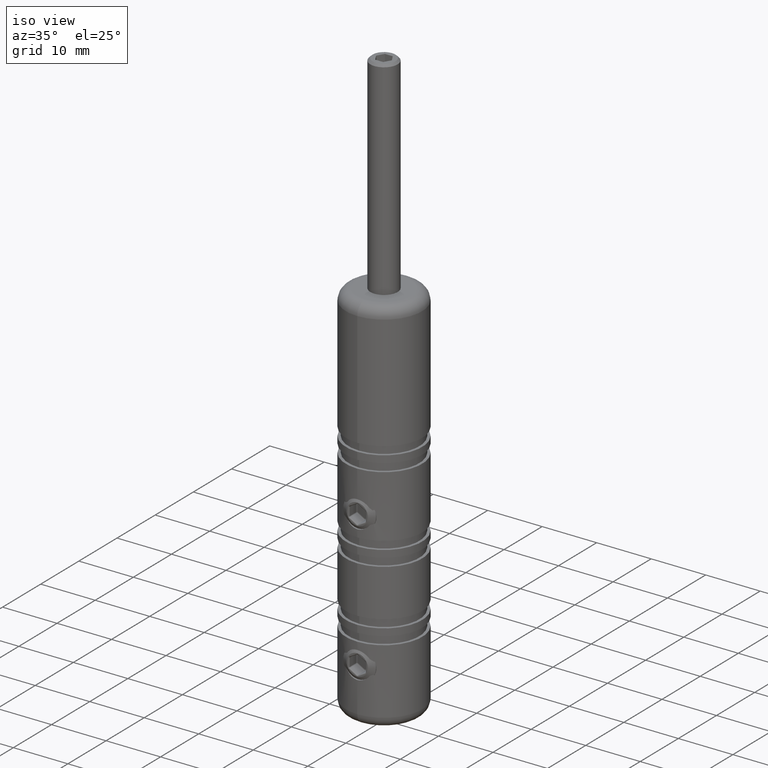
[diagram: clean part render]
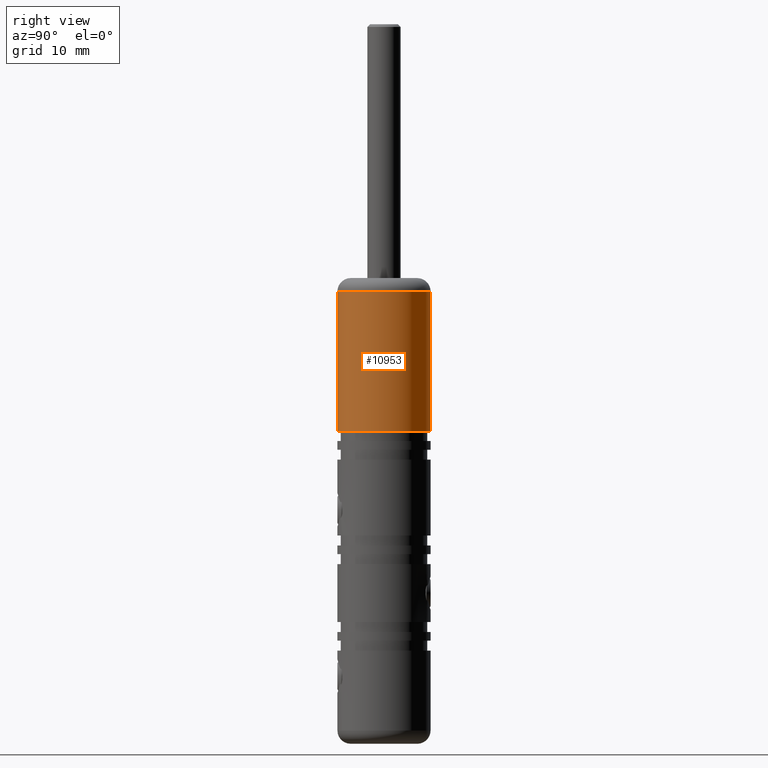
[diagram: tour spotlight — one face highlighted and labeled with its STEP entity id]
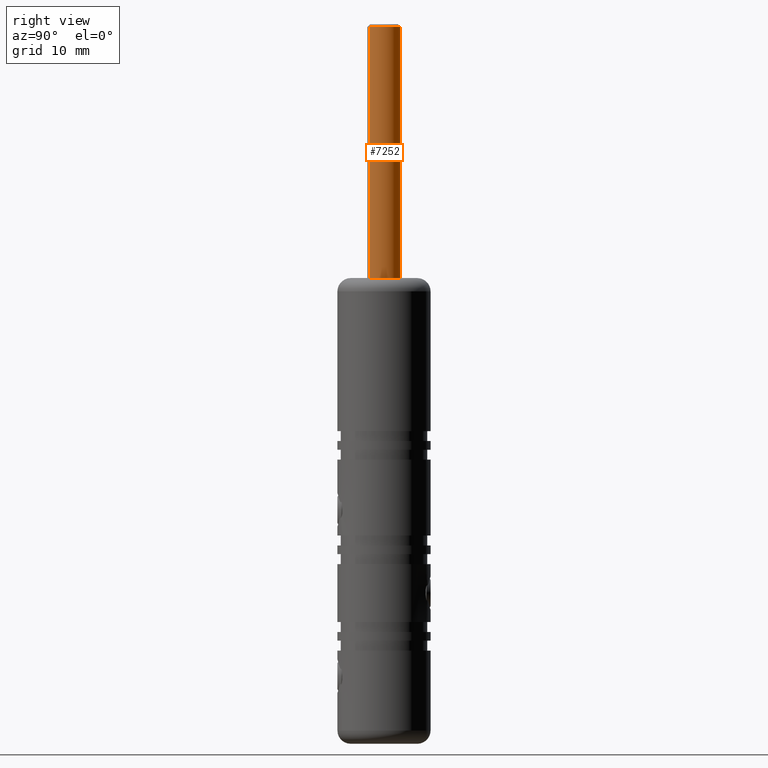
[diagram: tour spotlight — one face highlighted and labeled with its STEP entity id]
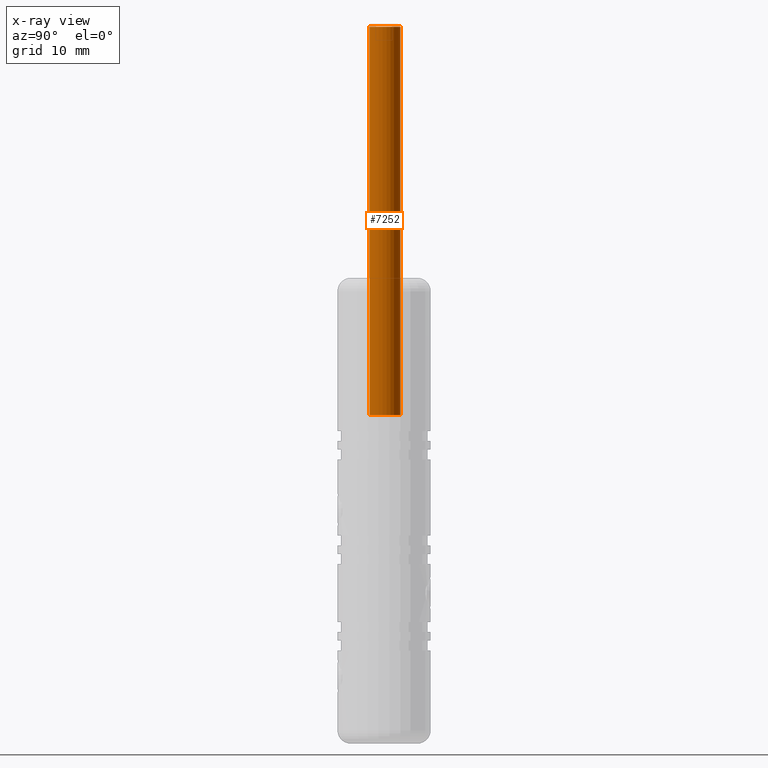
[diagram: x-ray of the same camera — body ghosted, this tour face saturated]
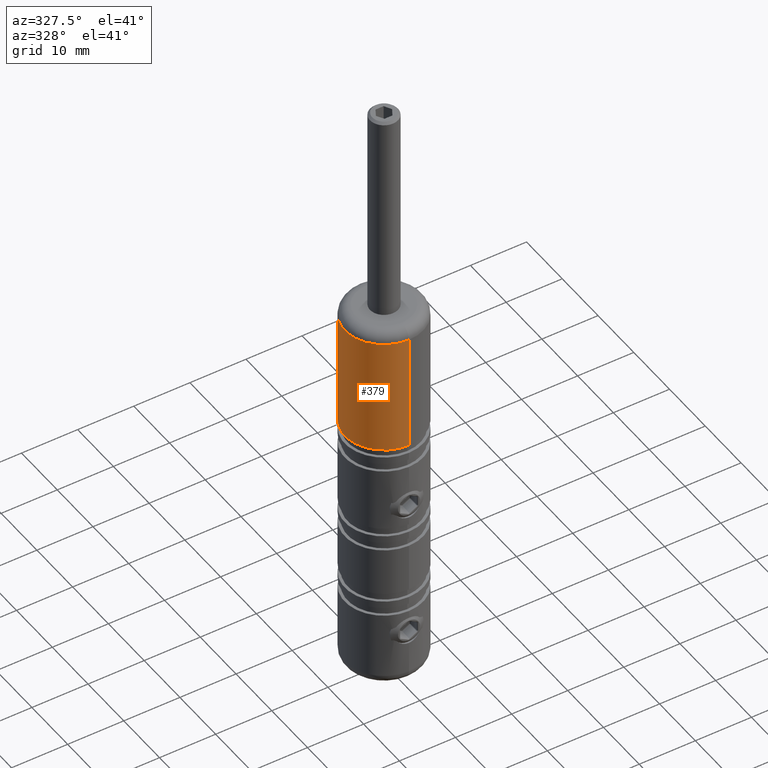
[diagram: tour spotlight — one face highlighted and labeled with its STEP entity id]
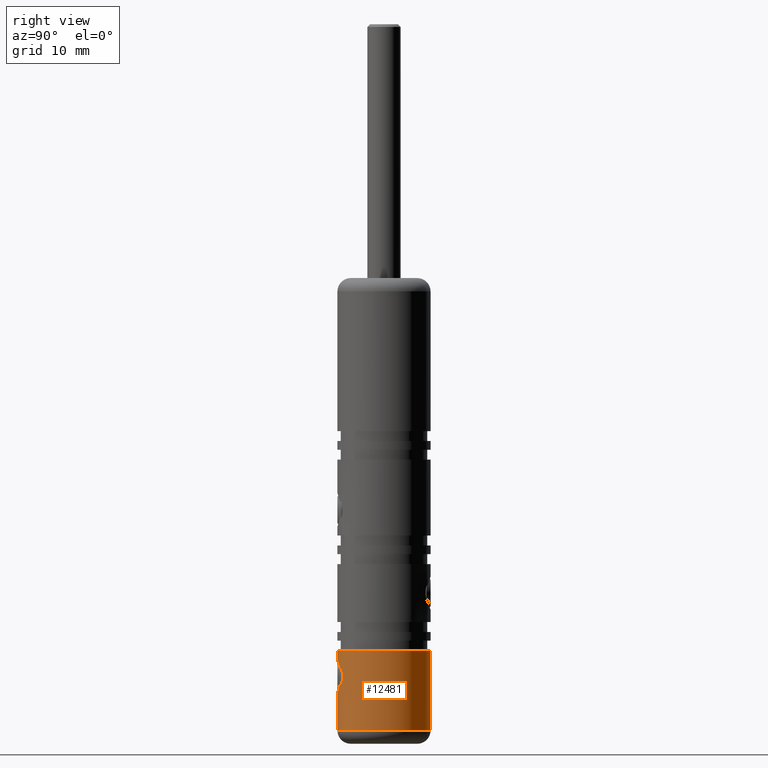
[diagram: tour spotlight — one face highlighted and labeled with its STEP entity id]
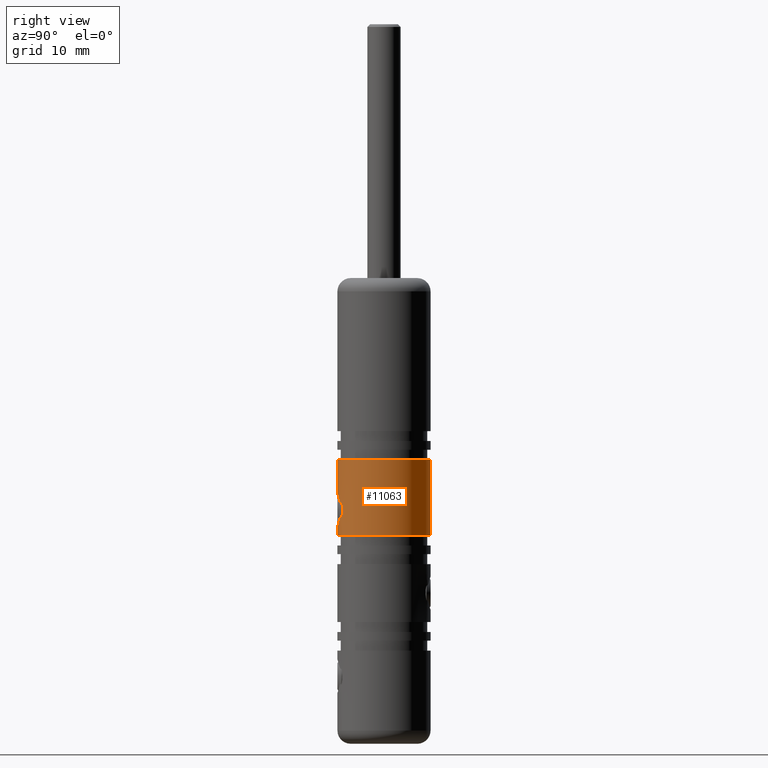
[diagram: tour spotlight — one face highlighted and labeled with its STEP entity id]
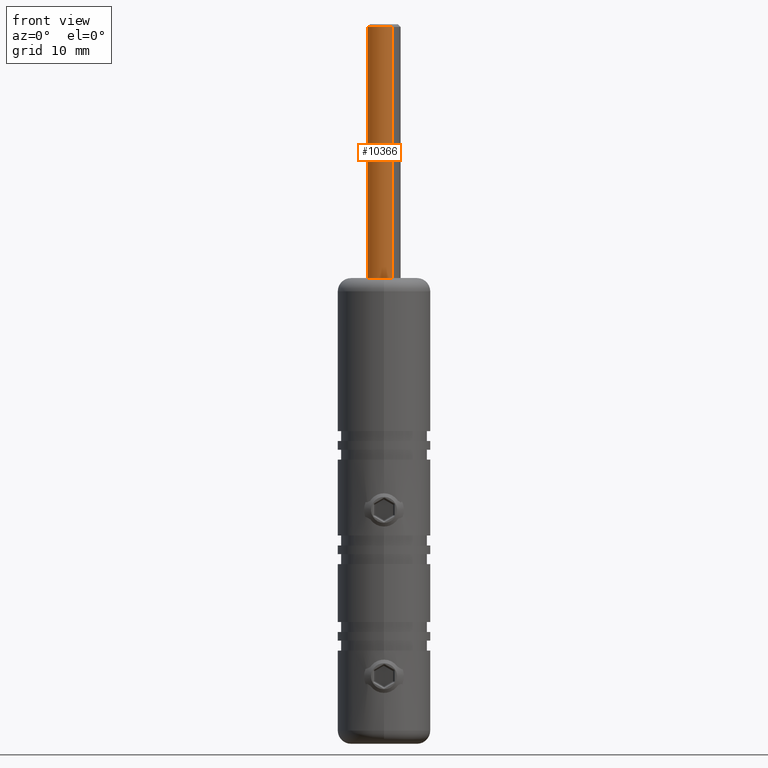
[diagram: tour spotlight — one face highlighted and labeled with its STEP entity id]
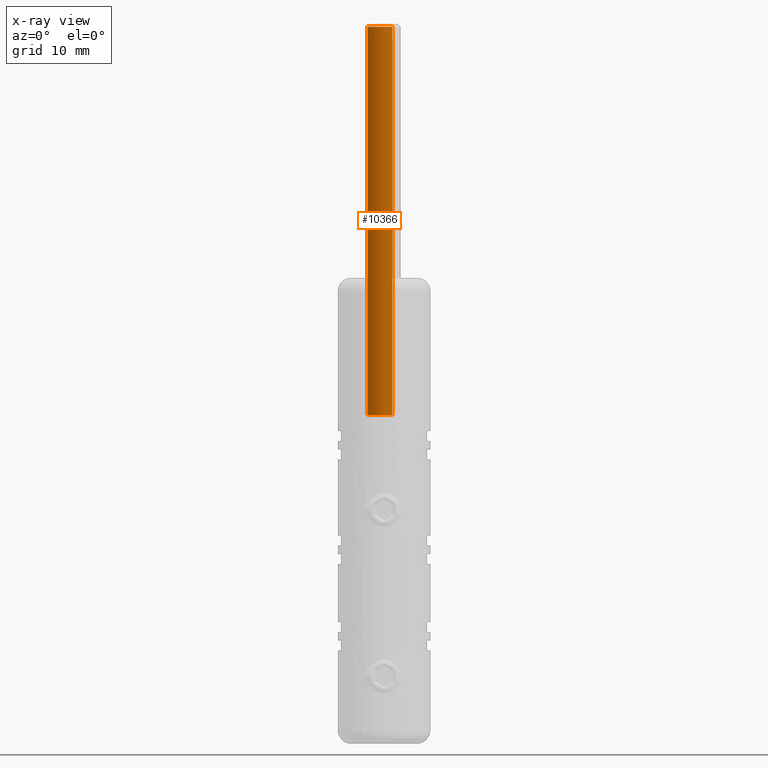
[diagram: x-ray of the same camera — body ghosted, this tour face saturated]
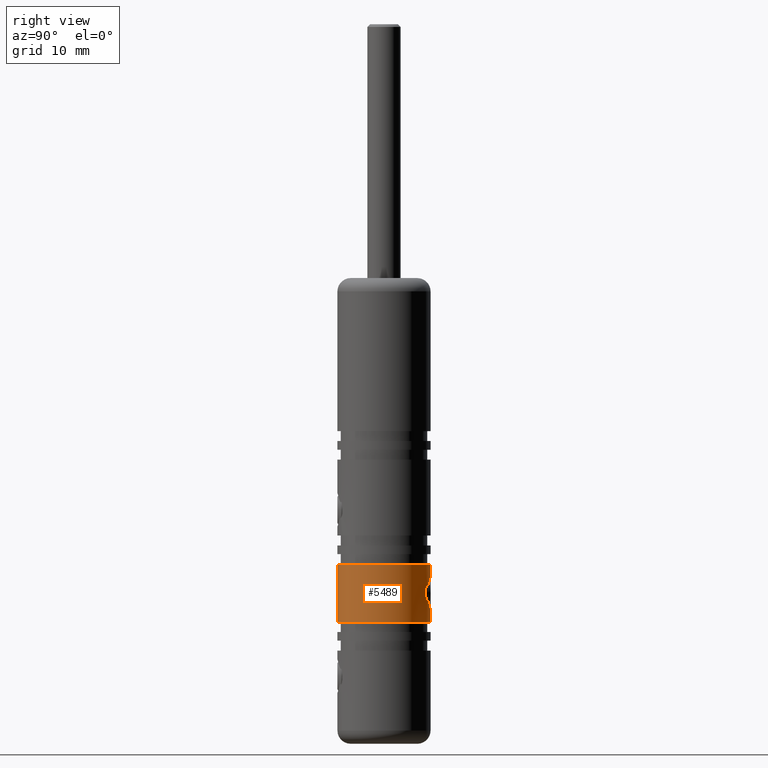
[diagram: tour spotlight — one face highlighted and labeled with its STEP entity id]
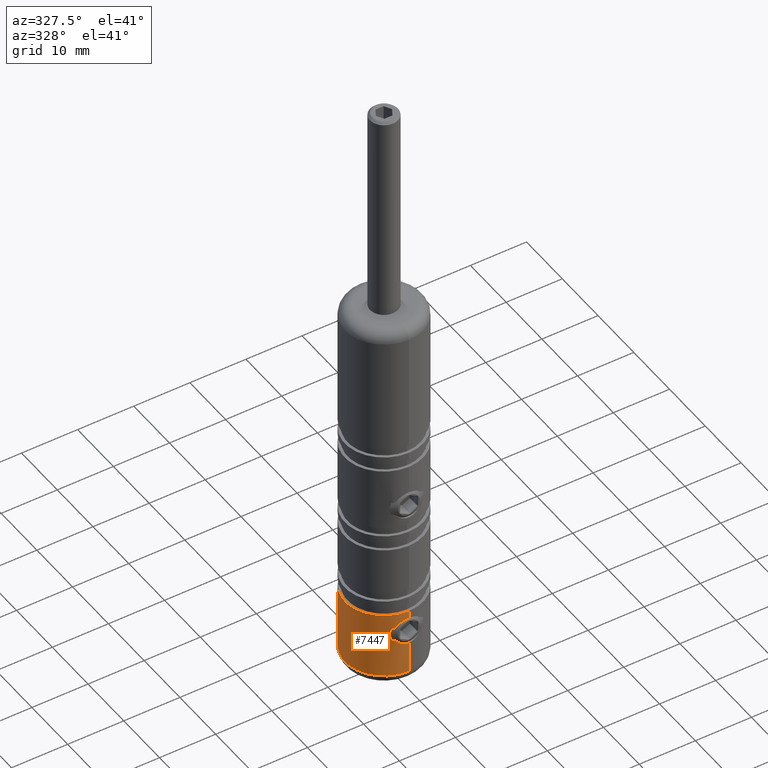
[diagram: tour spotlight — one face highlighted and labeled with its STEP entity id]
A machine part: a face-by-face anatomy tour. The part has 431 B-rep faces; the first image is the clean iso view, then the 8 largest visible faces are spotlighted one at a time (largest first), each with its STEP entity span.

Face 1 — right view, entity #10953. In plain terms, the highlighted cylindrical surface (partial cylindrical patch) has radius 7 mm, axis along (0, 0, 1).
Definition (entity closure, byte-faithful):
#116 = ORIENTED_EDGE ( 'NONE', *, *, #4414, .T. ) ;
#121 = DIRECTION ( 'NONE',  ( -0.0000000000000000000, 5.987083850887820200E-017, 1.000000000000000000 ) ) ;
#212 = CARTESIAN_POINT ( 'NONE',  ( 8.572527594031463300E-016, 6.999999999999991100, 33.00000000000000000 ) ) ;
#257 = EDGE_LOOP ( 'NONE', ( #7900, #11691, #116, #15666 ) ) ;
#1024 = DIRECTION ( 'NONE',  ( 0.0000000000000000000, 1.000000000000000000, 0.0000000000000000000 ) ) ;
#1069 = CARTESIAN_POINT ( 'NONE',  ( 8.572527594031461400E-016, 6.999999999999990200, 35.00000000000000000 ) ) ;
#1493 = EDGE_CURVE ( 'NONE', #10789, #2876, #5749, .T. ) ;
#1889 = FACE_OUTER_BOUND ( 'NONE', #257, .T. ) ;
#2571 = CARTESIAN_POINT ( 'NONE',  ( 0.0000000000000000000, -6.999999999999990200, 35.00000000000000000 ) ) ;
#2876 = VERTEX_POINT ( 'NONE', #11456 ) ;
#4027 = VECTOR ( 'NONE', #14304, 1000.000000000000000 ) ;
#4192 = CARTESIAN_POINT ( 'NONE',  ( 0.0000000000000000000, -1.377029285704199100E-015, 12.00000000000000000 ) ) ;
#4251 = LINE ( 'NONE', #2571, #4027 ) ;
#4396 = AXIS2_PLACEMENT_3D ( 'NONE', #4192, #15758, #13295 ) ;
#4414 = EDGE_CURVE ( 'NONE', #9693, #13933, #7344, .T. ) ;
#5012 = DIRECTION ( 'NONE',  ( 0.0000000000000000000, -5.987083850887820200E-017, -1.000000000000000000 ) ) ;
#5749 = CIRCLE ( 'NONE', #4396, 6.999999999999979600 ) ;
#6082 = VECTOR ( 'NONE', #16673, 1000.000000000000000 ) ;
#6373 = AXIS2_PLACEMENT_3D ( 'NONE', #14395, #121, #16862 ) ;
#6893 = LINE ( 'NONE', #1069, #6082 ) ;
#6938 = CARTESIAN_POINT ( 'NONE',  ( 0.0000000000000000000, -6.999999999999981300, 12.00000000000000000 ) ) ;
#7344 = CIRCLE ( 'NONE', #14432, 6.999999999999990200 ) ;
#7575 = CARTESIAN_POINT ( 'NONE',  ( 0.0000000000000000000, -6.999999999999990200, 33.00000000000000000 ) ) ;
#7900 = ORIENTED_EDGE ( 'NONE', *, *, #1493, .T. ) ;
#8613 = EDGE_CURVE ( 'NONE', #2876, #9693, #6893, .T. ) ;
#9072 = EDGE_CURVE ( 'NONE', #10789, #13933, #4251, .T. ) ;
#9693 = VERTEX_POINT ( 'NONE', #212 ) ;
#9937 = CYLINDRICAL_SURFACE ( 'NONE', #6373, 6.999999999999990200 ) ;
#10789 = VERTEX_POINT ( 'NONE', #6938 ) ;
#10953 = ADVANCED_FACE ( 'NONE', ( #1889 ), #9937, .T. ) ;
#11456 = CARTESIAN_POINT ( 'NONE',  ( 8.572527594031453500E-016, 6.999999999999977800, 12.00000000000000000 ) ) ;
#11691 = ORIENTED_EDGE ( 'NONE', *, *, #8613, .T. ) ;
#13295 = DIRECTION ( 'NONE',  ( 0.0000000000000000000, -1.000000000000000000, 0.0000000000000000000 ) ) ;
#13933 = VERTEX_POINT ( 'NONE', #7575 ) ;
#14304 = DIRECTION ( 'NONE',  ( -0.0000000000000000000, 5.987083850887820200E-017, 1.000000000000000000 ) ) ;
#14395 = CARTESIAN_POINT ( 'NONE',  ( 0.0000000000000000000, -3.851859888774471700E-031, 35.00000000000000000 ) ) ;
#14432 = AXIS2_PLACEMENT_3D ( 'NONE', #16586, #5012, #1024 ) ;
#15666 = ORIENTED_EDGE ( 'NONE', *, *, #9072, .F. ) ;
#15758 = DIRECTION ( 'NONE',  ( -0.0000000000000000000, 5.987083850887820200E-017, 1.000000000000000000 ) ) ;
#16586 = CARTESIAN_POINT ( 'NONE',  ( 0.0000000000000000000, -1.197416770177569200E-016, 33.00000000000000000 ) ) ;
#16673 = DIRECTION ( 'NONE',  ( -0.0000000000000000000, 5.987083850887820200E-017, 1.000000000000000000 ) ) ;
#16862 = DIRECTION ( 'NONE',  ( 0.0000000000000000000, -1.000000000000000000, 0.0000000000000000000 ) ) ;

Face 2 — right view, entity #7252. An x-ray twin of the same camera follows (body ghosted, this face saturated) — the face is partly hidden behind the body. In plain terms, the highlighted cylindrical surface (edge-blend (fillet) strip) has radius 2.5 mm, axis along (0, 0, 1).
Definition (entity closure, byte-faithful):
#176 = ORIENTED_EDGE ( 'NONE', *, *, #6876, .F. ) ;
#514 = EDGE_CURVE ( 'NONE', #8100, #7106, #9021, .T. ) ;
#1242 = VECTOR ( 'NONE', #8357, 1000.000000000000000 ) ;
#1527 = LINE ( 'NONE', #16382, #14988 ) ;
#1731 = CARTESIAN_POINT ( 'NONE',  ( 2.499999999999995100, 0.0000000000000000000, 0.0000000000000000000 ) ) ;
#1773 = AXIS2_PLACEMENT_3D ( 'NONE', #4925, #4805, #11404 ) ;
#1840 = ORIENTED_EDGE ( 'NONE', *, *, #514, .T. ) ;
#2030 = VERTEX_POINT ( 'NONE', #15454 ) ;
#2142 = DIRECTION ( 'NONE',  ( -1.000000000000000000, 0.0000000000000000000, 0.0000000000000000000 ) ) ;
#2215 = DIRECTION ( 'NONE',  ( 1.000000000000000000, 0.0000000000000000000, 0.0000000000000000000 ) ) ;
#2524 = EDGE_CURVE ( 'NONE', #3266, #2030, #5736, .T. ) ;
#3266 = VERTEX_POINT ( 'NONE', #14009 ) ;
#4635 = DIRECTION ( 'NONE',  ( 0.0000000000000000000, 0.0000000000000000000, 1.000000000000000000 ) ) ;
#4653 = DIRECTION ( 'NONE',  ( 0.0000000000000000000, 0.0000000000000000000, -1.000000000000000000 ) ) ;
#4805 = DIRECTION ( 'NONE',  ( 0.0000000000000000000, 0.0000000000000000000, 1.000000000000000000 ) ) ;
#4925 = CARTESIAN_POINT ( 'NONE',  ( 0.0000000000000000000, 0.0000000000000000000, -58.74999999999968000 ) ) ;
#5415 = CARTESIAN_POINT ( 'NONE',  ( -2.500000000000000400, 3.061616997868366900E-016, -58.74999999999968000 ) ) ;
#5497 = FACE_OUTER_BOUND ( 'NONE', #16394, .T. ) ;
#5682 = ORIENTED_EDGE ( 'NONE', *, *, #2524, .T. ) ;
#5736 = CIRCLE ( 'NONE', #10064, 2.499999999999995100 ) ;
#5965 = CARTESIAN_POINT ( 'NONE',  ( 0.0000000000000000000, 0.0000000000000000000, 0.0000000000000000000 ) ) ;
#6102 = LINE ( 'NONE', #1731, #1242 ) ;
#6876 = EDGE_CURVE ( 'NONE', #8100, #2030, #6102, .T. ) ;
#7106 = VERTEX_POINT ( 'NONE', #5415 ) ;
#7252 = ADVANCED_FACE ( 'NONE', ( #5497 ), #14273, .T. ) ;
#8100 = VERTEX_POINT ( 'NONE', #14225 ) ;
#8357 = DIRECTION ( 'NONE',  ( 0.0000000000000000000, 0.0000000000000000000, 1.000000000000000000 ) ) ;
#8764 = ORIENTED_EDGE ( 'NONE', *, *, #11719, .T. ) ;
#9021 = CIRCLE ( 'NONE', #1773, 2.499999999999995100 ) ;
#10064 = AXIS2_PLACEMENT_3D ( 'NONE', #16452, #4653, #2142 ) ;
#11078 = AXIS2_PLACEMENT_3D ( 'NONE', #5965, #13940, #2215 ) ;
#11404 = DIRECTION ( 'NONE',  ( 1.000000000000000000, 0.0000000000000000000, 0.0000000000000000000 ) ) ;
#11719 = EDGE_CURVE ( 'NONE', #7106, #3266, #1527, .T. ) ;
#13940 = DIRECTION ( 'NONE',  ( 0.0000000000000000000, 0.0000000000000000000, 1.000000000000000000 ) ) ;
#14009 = CARTESIAN_POINT ( 'NONE',  ( -2.500000000000000400, 3.061616997868366900E-016, -0.3999999999999975800 ) ) ;
#14225 = CARTESIAN_POINT ( 'NONE',  ( 2.499999999999995100, 0.0000000000000000000, -58.74999999999968000 ) ) ;
#14273 = CYLINDRICAL_SURFACE ( 'NONE', #11078, 2.499999999999995100 ) ;
#14988 = VECTOR ( 'NONE', #4635, 1000.000000000000000 ) ;
#15454 = CARTESIAN_POINT ( 'NONE',  ( 2.500000000000000400, 0.0000000000000000000, -0.3999999999999975800 ) ) ;
#16382 = CARTESIAN_POINT ( 'NONE',  ( -2.499999999999995100, 3.061616997868361000E-016, 0.0000000000000000000 ) ) ;
#16394 = EDGE_LOOP ( 'NONE', ( #1840, #8764, #5682, #176 ) ) ;
#16452 = CARTESIAN_POINT ( 'NONE',  ( 0.0000000000000000000, 0.0000000000000000000, -0.3999999999999975800 ) ) ;

Face 3 — auxiliary view, entity #379. In plain terms, the highlighted cylindrical surface (partial cylindrical patch) has radius 7 mm, axis along (0, 0, 1).
Definition (entity closure, byte-faithful):
#108 = DIRECTION ( 'NONE',  ( 0.0000000000000000000, -5.987083850887820200E-017, -1.000000000000000000 ) ) ;
#212 = CARTESIAN_POINT ( 'NONE',  ( 8.572527594031463300E-016, 6.999999999999991100, 33.00000000000000000 ) ) ;
#379 = ADVANCED_FACE ( 'NONE', ( #5761 ), #889, .T. ) ;
#889 = CYLINDRICAL_SURFACE ( 'NONE', #4815, 6.999999999999990200 ) ;
#1069 = CARTESIAN_POINT ( 'NONE',  ( 8.572527594031461400E-016, 6.999999999999990200, 35.00000000000000000 ) ) ;
#2571 = CARTESIAN_POINT ( 'NONE',  ( 0.0000000000000000000, -6.999999999999990200, 35.00000000000000000 ) ) ;
#2876 = VERTEX_POINT ( 'NONE', #11456 ) ;
#2931 = ORIENTED_EDGE ( 'NONE', *, *, #15667, .T. ) ;
#4027 = VECTOR ( 'NONE', #14304, 1000.000000000000000 ) ;
#4251 = LINE ( 'NONE', #2571, #4027 ) ;
#4815 = AXIS2_PLACEMENT_3D ( 'NONE', #7528, #15591, #12776 ) ;
#5646 = AXIS2_PLACEMENT_3D ( 'NONE', #7853, #108, #9180 ) ;
#5761 = FACE_OUTER_BOUND ( 'NONE', #10122, .T. ) ;
#6082 = VECTOR ( 'NONE', #16673, 1000.000000000000000 ) ;
#6893 = LINE ( 'NONE', #1069, #6082 ) ;
#6938 = CARTESIAN_POINT ( 'NONE',  ( 0.0000000000000000000, -6.999999999999981300, 12.00000000000000000 ) ) ;
#7149 = DIRECTION ( 'NONE',  ( -0.0000000000000000000, 5.987083850887820200E-017, 1.000000000000000000 ) ) ;
#7528 = CARTESIAN_POINT ( 'NONE',  ( 0.0000000000000000000, -3.851859888774471700E-031, 35.00000000000000000 ) ) ;
#7575 = CARTESIAN_POINT ( 'NONE',  ( 0.0000000000000000000, -6.999999999999990200, 33.00000000000000000 ) ) ;
#7853 = CARTESIAN_POINT ( 'NONE',  ( 0.0000000000000000000, -1.197416770177569200E-016, 33.00000000000000000 ) ) ;
#8560 = CARTESIAN_POINT ( 'NONE',  ( 0.0000000000000000000, -1.377029285704199100E-015, 12.00000000000000000 ) ) ;
#8570 = CIRCLE ( 'NONE', #8904, 6.999999999999979600 ) ;
#8613 = EDGE_CURVE ( 'NONE', #2876, #9693, #6893, .T. ) ;
#8904 = AXIS2_PLACEMENT_3D ( 'NONE', #8560, #7149, #16527 ) ;
#9072 = EDGE_CURVE ( 'NONE', #10789, #13933, #4251, .T. ) ;
#9180 = DIRECTION ( 'NONE',  ( 0.0000000000000000000, 1.000000000000000000, 0.0000000000000000000 ) ) ;
#9693 = VERTEX_POINT ( 'NONE', #212 ) ;
#10122 = EDGE_LOOP ( 'NONE', ( #14809, #2931, #13070, #11582 ) ) ;
#10789 = VERTEX_POINT ( 'NONE', #6938 ) ;
#11456 = CARTESIAN_POINT ( 'NONE',  ( 8.572527594031453500E-016, 6.999999999999977800, 12.00000000000000000 ) ) ;
#11582 = ORIENTED_EDGE ( 'NONE', *, *, #16845, .T. ) ;
#12776 = DIRECTION ( 'NONE',  ( 0.0000000000000000000, -1.000000000000000000, 0.0000000000000000000 ) ) ;
#13070 = ORIENTED_EDGE ( 'NONE', *, *, #9072, .T. ) ;
#13933 = VERTEX_POINT ( 'NONE', #7575 ) ;
#14304 = DIRECTION ( 'NONE',  ( -0.0000000000000000000, 5.987083850887820200E-017, 1.000000000000000000 ) ) ;
#14809 = ORIENTED_EDGE ( 'NONE', *, *, #8613, .F. ) ;
#15591 = DIRECTION ( 'NONE',  ( -0.0000000000000000000, 5.987083850887820200E-017, 1.000000000000000000 ) ) ;
#15667 = EDGE_CURVE ( 'NONE', #2876, #10789, #8570, .T. ) ;
#16527 = DIRECTION ( 'NONE',  ( 0.0000000000000000000, -1.000000000000000000, 0.0000000000000000000 ) ) ;
#16550 = CIRCLE ( 'NONE', #5646, 6.999999999999990200 ) ;
#16673 = DIRECTION ( 'NONE',  ( -0.0000000000000000000, 5.987083850887820200E-017, 1.000000000000000000 ) ) ;
#16845 = EDGE_CURVE ( 'NONE', #13933, #9693, #16550, .T. ) ;

Face 4 — right view, entity #12481. In plain terms, the highlighted cylindrical surface (partial cylindrical patch) has radius 7 mm, axis along (0, 0, 1).
Definition (entity closure, byte-faithful):
#236 = CARTESIAN_POINT ( 'NONE',  ( 0.6540352669565761000, -6.971272862623181700, -22.43141088080801300 ) ) ;
#399 = VERTEX_POINT ( 'NONE', #12897 ) ;
#692 = CARTESIAN_POINT ( 'NONE',  ( 2.371318124961760100, -6.586448955240076200, -24.04142302135678800 ) ) ;
#890 = CARTESIAN_POINT ( 'NONE',  ( 0.0000000000000000000, -6.999999999999995600, -27.35000000000000900 ) ) ;
#1041 = ORIENTED_EDGE ( 'NONE', *, *, #14745, .F. ) ;
#1170 = ORIENTED_EDGE ( 'NONE', *, *, #1252, .T. ) ;
#1252 = EDGE_CURVE ( 'NONE', #9547, #14160, #7026, .T. ) ;
#1932 = CARTESIAN_POINT ( 'NONE',  ( 0.8099226977673353900, -6.954668602191902400, -27.22085577401804100 ) ) ;
#1980 = CARTESIAN_POINT ( 'NONE',  ( 1.985071856398520800, -6.713311998948473300, -26.37844125889986600 ) ) ;
#2032 = CARTESIAN_POINT ( 'NONE',  ( 2.483781276121959500, -6.544618262933122200, -25.17878960677588700 ) ) ;
#2549 = CARTESIAN_POINT ( 'NONE',  ( 0.0000000000000000000, -4.071217018603719000E-015, -33.00000000000000000 ) ) ;
#2550 = CYLINDRICAL_SURFACE ( 'NONE', #4765, 6.999999999999992000 ) ;
#2853 = CARTESIAN_POINT ( 'NONE',  ( -1.798191898926723000E-019, -6.999999999999995600, -22.35000000000000900 ) ) ;
#3098 = EDGE_CURVE ( 'NONE', #8649, #4885, #13471, .T. ) ;
#3141 = CARTESIAN_POINT ( 'NONE',  ( 2.418950382063304700, -6.568856573578660400, -25.50264927966991700 ) ) ;
#3352 = CARTESIAN_POINT ( 'NONE',  ( 2.483372055786517300, -6.544772541226641300, -24.51877708649375300 ) ) ;
#3934 = DIRECTION ( 'NONE',  ( -0.0000000000000000000, 5.987083850887820200E-017, 1.000000000000000000 ) ) ;
#4044 = ORIENTED_EDGE ( 'NONE', *, *, #3098, .T. ) ;
#4080 = ORIENTED_EDGE ( 'NONE', *, *, #15350, .F. ) ;
#4167 = DIRECTION ( 'NONE',  ( -0.0000000000000000000, 5.987083850887820200E-017, 1.000000000000000000 ) ) ;
#4379 = CARTESIAN_POINT ( 'NONE',  ( 0.3298314055801356800, -6.994113146029484100, -22.36634408546799000 ) ) ;
#4573 = ORIENTED_EDGE ( 'NONE', *, *, #9490, .T. ) ;
#4609 = CARTESIAN_POINT ( 'NONE',  ( 2.166958222436144800, -6.656828098464568000, -26.10735238465168400 ) ) ;
#4765 = AXIS2_PLACEMENT_3D ( 'NONE', #8053, #9438, #12141 ) ;
#4885 = VERTEX_POINT ( 'NONE', #10490 ) ;
#5400 = FACE_OUTER_BOUND ( 'NONE', #13829, .T. ) ;
#5450 = CARTESIAN_POINT ( 'NONE',  ( 1.112358962610022300, -6.912733571233981200, -22.60513865453111700 ) ) ;
#5735 = CARTESIAN_POINT ( 'NONE',  ( 2.244868006902828000, -6.630609350652235000, -25.96226862869759300 ) ) ;
#5785 = CARTESIAN_POINT ( 'NONE',  ( 2.499952781304059600, -6.538366469829797200, -25.01545525281461100 ) ) ;
#6128 = CARTESIAN_POINT ( 'NONE',  ( 8.572527594031463300E-016, 6.999999999999992000, 35.00000000000000000 ) ) ;
#6668 = VERTEX_POINT ( 'NONE', #9057 ) ;
#6887 = AXIS2_PLACEMENT_3D ( 'NONE', #2549, #8896, #11649 ) ;
#7026 = B_SPLINE_CURVE_WITH_KNOTS ( 'NONE', 3,
 ( #2853, #12172, #4379, #236, #13257, #5450, #13479, #15939, #8037, #9357, #10697, #13317, #10748, #692, #10925, #3352, #9768, #5785, #2032, #3141, #11091, #5735, #4609, #1980, #9697, #13706, #8330, #14862, #8274, #1932, #9644, #8439, #12228, #7032 ),
 .UNSPECIFIED., .F., .F.,
 ( 4, 2, 2, 2, 2, 2, 2, 2, 2, 2, 2, 2, 2, 2, 2, 2, 4 ),
 ( 0.007881782131916150200, 0.008374279044384818800, 0.008866775956853489200, 0.009359272869322157700, 0.009851769781790828100, 0.01034426669425949700, 0.01083676360672816700, 0.01132926051919683600, 0.01182175743166550400, 0.01231425434413417400, 0.01280675125660284500, 0.01329924816907151300, 0.01379174508154018200, 0.01428424199400885100, 0.01477673890647752100, 0.01526923581894619100, 0.01576173273141486000 ),
 .UNSPECIFIED. ) ;
#7032 = CARTESIAN_POINT ( 'NONE',  ( 0.0000000000000000000, -6.999999999999995600, -27.35000000000000900 ) ) ;
#7155 = AXIS2_PLACEMENT_3D ( 'NONE', #9047, #3934, #7673 ) ;
#7673 = DIRECTION ( 'NONE',  ( 0.0000000000000000000, -1.000000000000000000, 0.0000000000000000000 ) ) ;
#7953 = VECTOR ( 'NONE', #4167, 1000.000000000000000 ) ;
#8037 = CARTESIAN_POINT ( 'NONE',  ( 1.653105218287371100, -6.803049768796553200, -22.96746572962796100 ) ) ;
#8053 = CARTESIAN_POINT ( 'NONE',  ( 0.0000000000000000000, -3.851859888774471700E-031, 35.00000000000000000 ) ) ;
#8274 = CARTESIAN_POINT ( 'NONE',  ( 1.112900731598803100, -6.912658107000479100, -27.09463445557629100 ) ) ;
#8330 = CARTESIAN_POINT ( 'NONE',  ( 1.525461260358927900, -6.833146476745671500, -26.83728154156504100 ) ) ;
#8439 = CARTESIAN_POINT ( 'NONE',  ( 0.3301674735900933000, -6.994057350817939800, -27.33349376524008200 ) ) ;
#8649 = VERTEX_POINT ( 'NONE', #13110 ) ;
#8896 = DIRECTION ( 'NONE',  ( -0.0000000000000000000, 5.987083850887820200E-017, 1.000000000000000000 ) ) ;
#8962 = CARTESIAN_POINT ( 'NONE',  ( -1.798191898926723000E-019, -6.999999999999995600, -22.35000000000000900 ) ) ;
#9047 = CARTESIAN_POINT ( 'NONE',  ( 0.0000000000000000000, -3.352766956497180300E-015, -21.00000000000000400 ) ) ;
#9057 = CARTESIAN_POINT ( 'NONE',  ( 0.0000000000000000000, -6.999999999999988500, -21.00000000000000400 ) ) ;
#9090 = DIRECTION ( 'NONE',  ( -0.0000000000000000000, 5.987083850887820200E-017, 1.000000000000000000 ) ) ;
#9357 = CARTESIAN_POINT ( 'NONE',  ( 1.884049631657651400, -6.742744248813124800, -23.19862205195031600 ) ) ;
#9438 = DIRECTION ( 'NONE',  ( -0.0000000000000000000, 5.987083850887820200E-017, 1.000000000000000000 ) ) ;
#9490 = EDGE_CURVE ( 'NONE', #4885, #399, #14440, .T. ) ;
#9547 = VERTEX_POINT ( 'NONE', #8962 ) ;
#9644 = CARTESIAN_POINT ( 'NONE',  ( 0.6509280992271845300, -6.971523606557164000, -27.26930660567025600 ) ) ;
#9697 = CARTESIAN_POINT ( 'NONE',  ( 1.882267286351116300, -6.743226106247508500, -26.50327994765446600 ) ) ;
#9768 = CARTESIAN_POINT ( 'NONE',  ( 2.500047014199537500, -6.538330438983366300, -24.68597476954498400 ) ) ;
#10490 = CARTESIAN_POINT ( 'NONE',  ( 8.572527594031463300E-016, 6.999999999999987600, -33.00000000000000000 ) ) ;
#10697 = CARTESIAN_POINT ( 'NONE',  ( 1.987229336688859600, -6.712660171888038500, -23.32451764556517300 ) ) ;
#10748 = CARTESIAN_POINT ( 'NONE',  ( 2.245229635005254700, -6.630490432528307400, -23.73829398388867800 ) ) ;
#10925 = CARTESIAN_POINT ( 'NONE',  ( 2.418899976427517600, -6.568874126354876000, -24.19749077406378700 ) ) ;
#11091 = CARTESIAN_POINT ( 'NONE',  ( 2.370298277086189600, -6.586812492170621700, -25.66133220596926300 ) ) ;
#11627 = CARTESIAN_POINT ( 'NONE',  ( 0.0000000000000000000, -6.999999999999992000, 35.00000000000000000 ) ) ;
#11649 = DIRECTION ( 'NONE',  ( 0.0000000000000000000, -1.000000000000000000, 0.0000000000000000000 ) ) ;
#11963 = CARTESIAN_POINT ( 'NONE',  ( 0.0000000000000000000, -6.999999999999992000, 35.00000000000000000 ) ) ;
#12141 = DIRECTION ( 'NONE',  ( 0.0000000000000000000, -1.000000000000000000, 0.0000000000000000000 ) ) ;
#12172 = CARTESIAN_POINT ( 'NONE',  ( 0.1641215762601833100, -6.999999999999995600, -22.35000000000001200 ) ) ;
#12228 = CARTESIAN_POINT ( 'NONE',  ( 0.1666267040243085700, -6.999999999999995600, -27.35000000000000900 ) ) ;
#12481 = ADVANCED_FACE ( 'NONE', ( #5400 ), #2550, .T. ) ;
#12897 = CARTESIAN_POINT ( 'NONE',  ( 8.572527594031459400E-016, 6.999999999999982200, -21.00000000000000400 ) ) ;
#13087 = VECTOR ( 'NONE', #9090, 1000.000000000000000 ) ;
#13110 = CARTESIAN_POINT ( 'NONE',  ( 0.0000000000000000000, -6.999999999999996400, -33.00000000000000000 ) ) ;
#13257 = CARTESIAN_POINT ( 'NONE',  ( 0.8104335219852871800, -6.954597428680301600, -22.47935822433634500 ) ) ;
#13317 = CARTESIAN_POINT ( 'NONE',  ( 2.167278451630088900, -6.656710233512393800, -23.59338511731368000 ) ) ;
#13471 = CIRCLE ( 'NONE', #6887, 6.999999999999992000 ) ;
#13479 = CARTESIAN_POINT ( 'NONE',  ( 1.258439323473956200, -6.887324901065300200, -22.68374109606490000 ) ) ;
#13706 = CARTESIAN_POINT ( 'NONE',  ( 1.653060922317842500, -6.803044762777268800, -26.73245964357529300 ) ) ;
#13829 = EDGE_LOOP ( 'NONE', ( #4044, #4573, #4080, #16709, #1170, #1041 ) ) ;
#13908 = LINE ( 'NONE', #11627, #13087 ) ;
#14160 = VERTEX_POINT ( 'NONE', #890 ) ;
#14440 = LINE ( 'NONE', #6128, #15278 ) ;
#14745 = EDGE_CURVE ( 'NONE', #8649, #14160, #13908, .T. ) ;
#14862 = CARTESIAN_POINT ( 'NONE',  ( 1.255824464353440000, -6.887802824141309600, -27.01776956732775000 ) ) ;
#15248 = DIRECTION ( 'NONE',  ( -0.0000000000000000000, 5.987083850887820200E-017, 1.000000000000000000 ) ) ;
#15278 = VECTOR ( 'NONE', #15248, 1000.000000000000000 ) ;
#15350 = EDGE_CURVE ( 'NONE', #6668, #399, #15557, .T. ) ;
#15475 = EDGE_CURVE ( 'NONE', #9547, #6668, #16782, .T. ) ;
#15557 = CIRCLE ( 'NONE', #7155, 6.999999999999985800 ) ;
#15939 = CARTESIAN_POINT ( 'NONE',  ( 1.527991438892424100, -6.832580477855433500, -22.86465636918563900 ) ) ;
#16709 = ORIENTED_EDGE ( 'NONE', *, *, #15475, .F. ) ;
#16782 = LINE ( 'NONE', #11963, #7953 ) ;

Face 5 — right view, entity #11063. In plain terms, the highlighted cylindrical surface (partial cylindrical patch) has radius 7 mm, axis along (0, 0, 1).
Definition (entity closure, byte-faithful):
#241 = VECTOR ( 'NONE', #5281, 1000.000000000000000 ) ;
#317 = CARTESIAN_POINT ( 'NONE',  ( 0.3301674735900958500, -6.994057350817926500, -2.333493765240084900 ) ) ;
#436 = CARTESIAN_POINT ( 'NONE',  ( 1.525461260358928600, -6.833146476745657300, -1.837281541565040500 ) ) ;
#494 = CARTESIAN_POINT ( 'NONE',  ( 2.418950382063303800, -6.568856573578645300, -0.5026492796699213500 ) ) ;
#534 = EDGE_CURVE ( 'NONE', #14760, #3796, #1307, .T. ) ;
#993 = CARTESIAN_POINT ( 'NONE',  ( -1.798192403797702300E-019, -6.999999999999982200, 2.649999999999993200 ) ) ;
#1307 = LINE ( 'NONE', #13839, #4357 ) ;
#1370 = AXIS2_PLACEMENT_3D ( 'NONE', #13259, #5453, #14578 ) ;
#1555 = CARTESIAN_POINT ( 'NONE',  ( 0.8104335219852865100, -6.954597428680288300, 2.520641775663659900 ) ) ;
#1882 = FACE_OUTER_BOUND ( 'NONE', #2462, .T. ) ;
#2011 = AXIS2_PLACEMENT_3D ( 'NONE', #4209, #13252, #6684 ) ;
#2462 = EDGE_LOOP ( 'NONE', ( #16724, #12334, #7687, #4685, #13400, #6129 ) ) ;
#2503 = CIRCLE ( 'NONE', #3998, 6.999999999999979600 ) ;
#2793 = CARTESIAN_POINT ( 'NONE',  ( 8.572527594031448500E-016, 6.999999999999977800, 7.699999999999998400 ) ) ;
#2881 = CARTESIAN_POINT ( 'NONE',  ( 2.371318124961758800, -6.586448955240061100, 0.9585769786432174500 ) ) ;
#3047 = CARTESIAN_POINT ( 'NONE',  ( 1.527991438892423600, -6.832580477855418400, 2.135343630814364100 ) ) ;
#3411 = DIRECTION ( 'NONE',  ( -0.0000000000000000000, 5.987083850887820200E-017, 1.000000000000000000 ) ) ;
#3581 = CARTESIAN_POINT ( 'NONE',  ( 0.0000000000000000000, -6.999999999999982200, -2.350000000000001400 ) ) ;
#3796 = VERTEX_POINT ( 'NONE', #3581 ) ;
#3930 = CARTESIAN_POINT ( 'NONE',  ( 0.0000000000000000000, -6.999999999999984000, -3.700000000000008600 ) ) ;
#3947 = CARTESIAN_POINT ( 'NONE',  ( 0.1641215762601823900, -6.999999999999981300, 2.649999999999993200 ) ) ;
#3966 = CARTESIAN_POINT ( 'NONE',  ( 0.0000000000000000000, -6.999999999999980500, 35.00000000000000000 ) ) ;
#3998 = AXIS2_PLACEMENT_3D ( 'NONE', #11274, #5907, #13662 ) ;
#4183 = CARTESIAN_POINT ( 'NONE',  ( 2.244868006902828800, -6.630609350652220800, -0.9622686286975953300 ) ) ;
#4209 = CARTESIAN_POINT ( 'NONE',  ( 0.0000000000000000000, -3.851859888774471700E-031, 35.00000000000000000 ) ) ;
#4357 = VECTOR ( 'NONE', #11344, 1000.000000000000000 ) ;
#4685 = ORIENTED_EDGE ( 'NONE', *, *, #5667, .F. ) ;
#4829 = VERTEX_POINT ( 'NONE', #4936 ) ;
#4936 = CARTESIAN_POINT ( 'NONE',  ( 8.572527594031448500E-016, 6.999999999999978700, -3.700000000000009100 ) ) ;
#5139 = LINE ( 'NONE', #10052, #5337 ) ;
#5281 = DIRECTION ( 'NONE',  ( -0.0000000000000000000, 5.987083850887820200E-017, 1.000000000000000000 ) ) ;
#5337 = VECTOR ( 'NONE', #3411, 1000.000000000000000 ) ;
#5453 = DIRECTION ( 'NONE',  ( -0.0000000000000000000, 5.987083850887820200E-017, 1.000000000000000000 ) ) ;
#5593 = CARTESIAN_POINT ( 'NONE',  ( 2.483372055786517300, -6.544772541226627100, 0.4812229135062432400 ) ) ;
#5667 = EDGE_CURVE ( 'NONE', #14077, #7370, #10831, .T. ) ;
#5907 = DIRECTION ( 'NONE',  ( -0.0000000000000000000, 5.987083850887820200E-017, 1.000000000000000000 ) ) ;
#6129 = ORIENTED_EDGE ( 'NONE', *, *, #534, .F. ) ;
#6684 = DIRECTION ( 'NONE',  ( 0.0000000000000000000, -1.000000000000000000, 0.0000000000000000000 ) ) ;
#6834 = CARTESIAN_POINT ( 'NONE',  ( 2.370298277086189600, -6.586812492170608400, -0.6613322059692579000 ) ) ;
#6891 = CARTESIAN_POINT ( 'NONE',  ( 2.418899976427517600, -6.568874126354860900, 0.8025092259362089900 ) ) ;
#7370 = VERTEX_POINT ( 'NONE', #16699 ) ;
#7687 = ORIENTED_EDGE ( 'NONE', *, *, #15621, .F. ) ;
#8006 = CARTESIAN_POINT ( 'NONE',  ( 0.6540352669565761000, -6.971272862623168400, 2.568589119191983200 ) ) ;
#8185 = CARTESIAN_POINT ( 'NONE',  ( 1.882267286351115600, -6.743226106247497000, -1.503279947654465400 ) ) ;
#8245 = CARTESIAN_POINT ( 'NONE',  ( 1.884049631657650700, -6.742744248813109700, 1.801377948049685900 ) ) ;
#9363 = EDGE_CURVE ( 'NONE', #14760, #4829, #16293, .T. ) ;
#9384 = CARTESIAN_POINT ( 'NONE',  ( 2.167278451630088000, -6.656710233512381300, 1.406614882686321400 ) ) ;
#9428 = B_SPLINE_CURVE_WITH_KNOTS ( 'NONE', 3,
 ( #14372, #3947, #15851, #8006, #1555, #11704, #10894, #3047, #13392, #8245, #12032, #9384, #11974, #2881, #6891, #5593, #10836, #16083, #14722, #494, #6834, #4183, #16148, #12196, #8185, #9445, #436, #12094, #10724, #9554, #10773, #317, #15910, #9501 ),
 .UNSPECIFIED., .F., .F.,
 ( 4, 2, 2, 2, 2, 2, 2, 2, 2, 2, 2, 2, 2, 2, 2, 2, 4 ),
 ( 0.007881782131916139800, 0.008374279044384806700, 0.008866775956853475300, 0.009359272869322143900, 0.009851769781790812400, 0.01034426669425948100, 0.01083676360672815000, 0.01132926051919681800, 0.01182175743166548700, 0.01231425434413415500, 0.01280675125660282400, 0.01329924816907149300, 0.01379174508154016100, 0.01428424199400883300, 0.01477673890647750200, 0.01526923581894617000, 0.01576173273141483900 ),
 .UNSPECIFIED. ) ;
#9445 = CARTESIAN_POINT ( 'NONE',  ( 1.653060922317841400, -6.803044762777255400, -1.732459643575296800 ) ) ;
#9501 = CARTESIAN_POINT ( 'NONE',  ( 0.0000000000000000000, -6.999999999999982200, -2.350000000000001400 ) ) ;
#9554 = CARTESIAN_POINT ( 'NONE',  ( 0.8099226977673380500, -6.954668602191890900, -2.220855774018043200 ) ) ;
#10052 = CARTESIAN_POINT ( 'NONE',  ( 8.572527594031448500E-016, 6.999999999999980500, 35.00000000000000000 ) ) ;
#10222 = VERTEX_POINT ( 'NONE', #2793 ) ;
#10724 = CARTESIAN_POINT ( 'NONE',  ( 1.112900731598805300, -6.912658107000464900, -2.094634455576286600 ) ) ;
#10773 = CARTESIAN_POINT ( 'NONE',  ( 0.6509280992271876400, -6.971523606557150600, -2.269306605670252900 ) ) ;
#10831 = LINE ( 'NONE', #3966, #241 ) ;
#10836 = CARTESIAN_POINT ( 'NONE',  ( 2.500047014199537500, -6.538330438983353900, 0.3140252304550248400 ) ) ;
#10894 = CARTESIAN_POINT ( 'NONE',  ( 1.258439323473954800, -6.887324901065287700, 2.316258903935103600 ) ) ;
#11063 = ADVANCED_FACE ( 'NONE', ( #1882 ), #11100, .T. ) ;
#11100 = CYLINDRICAL_SURFACE ( 'NONE', #2011, 6.999999999999980500 ) ;
#11274 = CARTESIAN_POINT ( 'NONE',  ( 0.0000000000000000000, -1.634473891292375600E-015, 7.699999999999998400 ) ) ;
#11344 = DIRECTION ( 'NONE',  ( -0.0000000000000000000, 5.987083850887820200E-017, 1.000000000000000000 ) ) ;
#11704 = CARTESIAN_POINT ( 'NONE',  ( 1.112358962610021700, -6.912733571233963500, 2.394861345468886500 ) ) ;
#11974 = CARTESIAN_POINT ( 'NONE',  ( 2.245229635005254300, -6.630490432528295000, 1.261706016111326500 ) ) ;
#12032 = CARTESIAN_POINT ( 'NONE',  ( 1.987229336688858300, -6.712660171888023400, 1.675482354434827400 ) ) ;
#12094 = CARTESIAN_POINT ( 'NONE',  ( 1.255824464353440900, -6.887802824141296300, -2.017769567327756700 ) ) ;
#12196 = CARTESIAN_POINT ( 'NONE',  ( 1.985071856398521700, -6.713311998948457300, -1.378441258899870200 ) ) ;
#12334 = ORIENTED_EDGE ( 'NONE', *, *, #16650, .T. ) ;
#13252 = DIRECTION ( 'NONE',  ( -0.0000000000000000000, 5.987083850887820200E-017, 1.000000000000000000 ) ) ;
#13259 = CARTESIAN_POINT ( 'NONE',  ( 0.0000000000000000000, -2.317001450293587300E-015, -3.700000000000009100 ) ) ;
#13392 = CARTESIAN_POINT ( 'NONE',  ( 1.653105218287370400, -6.803049768796539900, 2.032534270372039000 ) ) ;
#13400 = ORIENTED_EDGE ( 'NONE', *, *, #14416, .T. ) ;
#13662 = DIRECTION ( 'NONE',  ( 0.0000000000000000000, -1.000000000000000000, 0.0000000000000000000 ) ) ;
#13839 = CARTESIAN_POINT ( 'NONE',  ( 0.0000000000000000000, -6.999999999999980500, 35.00000000000000000 ) ) ;
#14077 = VERTEX_POINT ( 'NONE', #993 ) ;
#14372 = CARTESIAN_POINT ( 'NONE',  ( -1.798192403797702300E-019, -6.999999999999982200, 2.649999999999993200 ) ) ;
#14416 = EDGE_CURVE ( 'NONE', #14077, #3796, #9428, .T. ) ;
#14578 = DIRECTION ( 'NONE',  ( 0.0000000000000000000, -1.000000000000000000, 6.195440985631470100E-017 ) ) ;
#14722 = CARTESIAN_POINT ( 'NONE',  ( 2.483781276121959500, -6.544618262933107100, -0.1787896067758831300 ) ) ;
#14760 = VERTEX_POINT ( 'NONE', #3930 ) ;
#15621 = EDGE_CURVE ( 'NONE', #7370, #10222, #2503, .T. ) ;
#15851 = CARTESIAN_POINT ( 'NONE',  ( 0.3298314055801359100, -6.994113146029470800, 2.633655914532012000 ) ) ;
#15910 = CARTESIAN_POINT ( 'NONE',  ( 0.1666267040243084300, -6.999999999999983100, -2.350000000000001400 ) ) ;
#16083 = CARTESIAN_POINT ( 'NONE',  ( 2.499952781304059600, -6.538366469829780300, -0.01545525281460364600 ) ) ;
#16148 = CARTESIAN_POINT ( 'NONE',  ( 2.166958222436145700, -6.656828098464554700, -1.107352384651682000 ) ) ;
#16293 = CIRCLE ( 'NONE', #1370, 6.999999999999981300 ) ;
#16650 = EDGE_CURVE ( 'NONE', #4829, #10222, #5139, .T. ) ;
#16699 = CARTESIAN_POINT ( 'NONE',  ( 0.0000000000000000000, -6.999999999999981300, 7.699999999999998400 ) ) ;
#16724 = ORIENTED_EDGE ( 'NONE', *, *, #9363, .T. ) ;

Face 6 — front view, entity #10366. An x-ray twin of the same camera follows (body ghosted, this face saturated) — the face is partly hidden behind the body. In plain terms, the highlighted cylindrical surface (edge-blend (fillet) strip) has radius 2.5 mm, axis along (0, 0, 1).
Definition (entity closure, byte-faithful):
#482 = DIRECTION ( 'NONE',  ( 1.000000000000000000, 0.0000000000000000000, 0.0000000000000000000 ) ) ;
#1242 = VECTOR ( 'NONE', #8357, 1000.000000000000000 ) ;
#1527 = LINE ( 'NONE', #16382, #14988 ) ;
#1731 = CARTESIAN_POINT ( 'NONE',  ( 2.499999999999995100, 0.0000000000000000000, 0.0000000000000000000 ) ) ;
#2030 = VERTEX_POINT ( 'NONE', #15454 ) ;
#2088 = EDGE_CURVE ( 'NONE', #7106, #8100, #13693, .T. ) ;
#2370 = EDGE_LOOP ( 'NONE', ( #9411, #11313, #9532, #4390 ) ) ;
#3266 = VERTEX_POINT ( 'NONE', #14009 ) ;
#4390 = ORIENTED_EDGE ( 'NONE', *, *, #10838, .T. ) ;
#4553 = CYLINDRICAL_SURFACE ( 'NONE', #13364, 2.499999999999995100 ) ;
#4635 = DIRECTION ( 'NONE',  ( 0.0000000000000000000, 0.0000000000000000000, 1.000000000000000000 ) ) ;
#5415 = CARTESIAN_POINT ( 'NONE',  ( -2.500000000000000400, 3.061616997868366900E-016, -58.74999999999968000 ) ) ;
#6102 = LINE ( 'NONE', #1731, #1242 ) ;
#6876 = EDGE_CURVE ( 'NONE', #8100, #2030, #6102, .T. ) ;
#7106 = VERTEX_POINT ( 'NONE', #5415 ) ;
#7405 = AXIS2_PLACEMENT_3D ( 'NONE', #11054, #10939, #482 ) ;
#8100 = VERTEX_POINT ( 'NONE', #14225 ) ;
#8357 = DIRECTION ( 'NONE',  ( 0.0000000000000000000, 0.0000000000000000000, 1.000000000000000000 ) ) ;
#8822 = DIRECTION ( 'NONE',  ( 0.0000000000000000000, 0.0000000000000000000, 1.000000000000000000 ) ) ;
#9002 = FACE_OUTER_BOUND ( 'NONE', #2370, .T. ) ;
#9201 = AXIS2_PLACEMENT_3D ( 'NONE', #11382, #14004, #10067 ) ;
#9411 = ORIENTED_EDGE ( 'NONE', *, *, #11719, .F. ) ;
#9532 = ORIENTED_EDGE ( 'NONE', *, *, #6876, .T. ) ;
#9916 = DIRECTION ( 'NONE',  ( 1.000000000000000000, 0.0000000000000000000, 0.0000000000000000000 ) ) ;
#10067 = DIRECTION ( 'NONE',  ( -1.000000000000000000, 0.0000000000000000000, 0.0000000000000000000 ) ) ;
#10366 = ADVANCED_FACE ( 'NONE', ( #9002 ), #4553, .T. ) ;
#10838 = EDGE_CURVE ( 'NONE', #2030, #3266, #12419, .T. ) ;
#10939 = DIRECTION ( 'NONE',  ( 0.0000000000000000000, 0.0000000000000000000, 1.000000000000000000 ) ) ;
#11054 = CARTESIAN_POINT ( 'NONE',  ( 0.0000000000000000000, 0.0000000000000000000, -58.74999999999968000 ) ) ;
#11313 = ORIENTED_EDGE ( 'NONE', *, *, #2088, .T. ) ;
#11382 = CARTESIAN_POINT ( 'NONE',  ( 0.0000000000000000000, 0.0000000000000000000, -0.3999999999999975800 ) ) ;
#11719 = EDGE_CURVE ( 'NONE', #7106, #3266, #1527, .T. ) ;
#12419 = CIRCLE ( 'NONE', #9201, 2.499999999999995100 ) ;
#13364 = AXIS2_PLACEMENT_3D ( 'NONE', #14748, #8822, #9916 ) ;
#13693 = CIRCLE ( 'NONE', #7405, 2.499999999999995100 ) ;
#14004 = DIRECTION ( 'NONE',  ( 0.0000000000000000000, 0.0000000000000000000, -1.000000000000000000 ) ) ;
#14009 = CARTESIAN_POINT ( 'NONE',  ( -2.500000000000000400, 3.061616997868366900E-016, -0.3999999999999975800 ) ) ;
#14225 = CARTESIAN_POINT ( 'NONE',  ( 2.499999999999995100, 0.0000000000000000000, -58.74999999999968000 ) ) ;
#14748 = CARTESIAN_POINT ( 'NONE',  ( 0.0000000000000000000, 0.0000000000000000000, 0.0000000000000000000 ) ) ;
#14988 = VECTOR ( 'NONE', #4635, 1000.000000000000000 ) ;
#15454 = CARTESIAN_POINT ( 'NONE',  ( 2.500000000000000400, 0.0000000000000000000, -0.3999999999999975800 ) ) ;
#16382 = CARTESIAN_POINT ( 'NONE',  ( -2.499999999999995100, 3.061616997868361000E-016, 0.0000000000000000000 ) ) ;

Face 7 — right view, entity #5489. In plain terms, the highlighted cylindrical surface (partial cylindrical patch) has radius 7 mm, axis along (0, 0, 1).
Definition (entity closure, byte-faithful):
#435 = DIRECTION ( 'NONE',  ( 0.0000000000000000000, -1.000000000000000000, 0.0000000000000000000 ) ) ;
#446 = CARTESIAN_POINT ( 'NONE',  ( 2.483372055786517300, 6.544772541226629800, -12.68122291350626100 ) ) ;
#555 = CARTESIAN_POINT ( 'NONE',  ( 0.6540352669565776500, 6.971272862623168400, -14.76858911919199700 ) ) ;
#608 = CARTESIAN_POINT ( 'NONE',  ( 8.572527594031454500E-016, 6.999999999999982200, -16.70000000000000600 ) ) ;
#882 = CARTESIAN_POINT ( 'NONE',  ( 2.499952781304059600, 6.538366469829782100, -12.18454474718541100 ) ) ;
#1395 = CARTESIAN_POINT ( 'NONE',  ( 0.0000000000000000000, -6.999999999999988500, -16.70000000000000600 ) ) ;
#1687 = CARTESIAN_POINT ( 'NONE',  ( 8.570729401906099000E-016, 6.999999999999983100, -14.85000000000000700 ) ) ;
#1721 = CARTESIAN_POINT ( 'NONE',  ( 8.572527594031454500E-016, 6.999999999999982200, -8.000000000000007100 ) ) ;
#1830 = ORIENTED_EDGE ( 'NONE', *, *, #3633, .F. ) ;
#1964 = CARTESIAN_POINT ( 'NONE',  ( 2.483781276121959100, 6.544618262933110700, -12.02121039322412900 ) ) ;
#2184 = CARTESIAN_POINT ( 'NONE',  ( 1.112900731598805100, 6.912658107000465800, -10.10536554442372800 ) ) ;
#2284 = DIRECTION ( 'NONE',  ( -0.0000000000000000000, 5.987083850887820200E-017, 1.000000000000000000 ) ) ;
#2397 = DIRECTION ( 'NONE',  ( 0.0000000000000000000, -1.000000000000000000, 0.0000000000000000000 ) ) ;
#2466 = ORIENTED_EDGE ( 'NONE', *, *, #13227, .T. ) ;
#2493 = VECTOR ( 'NONE', #14704, 1000.000000000000000 ) ;
#3007 = CARTESIAN_POINT ( 'NONE',  ( 0.8104335219852874000, 6.954597428680288300, -14.72064177566367800 ) ) ;
#3104 = VECTOR ( 'NONE', #15484, 1000.000000000000000 ) ;
#3119 = CARTESIAN_POINT ( 'NONE',  ( 1.527991438892422900, 6.832580477855420200, -14.33534363081437800 ) ) ;
#3134 = LINE ( 'NONE', #4583, #10028 ) ;
#3303 = CARTESIAN_POINT ( 'NONE',  ( 8.570729401906099000E-016, 6.999999999999983100, -14.85000000000000700 ) ) ;
#3373 = AXIS2_PLACEMENT_3D ( 'NONE', #3643, #2284, #2397 ) ;
#3633 = EDGE_CURVE ( 'NONE', #6071, #15276, #11861, .T. ) ;
#3639 = AXIS2_PLACEMENT_3D ( 'NONE', #12734, #11552, #7652 ) ;
#3643 = CARTESIAN_POINT ( 'NONE',  ( 0.0000000000000000000, -3.095322350909004000E-015, -16.70000000000000600 ) ) ;
#4259 = EDGE_CURVE ( 'NONE', #15190, #7906, #8353, .T. ) ;
#4305 = CARTESIAN_POINT ( 'NONE',  ( 1.112358962610022500, 6.912733571233966100, -14.59486134546890300 ) ) ;
#4531 = CARTESIAN_POINT ( 'NONE',  ( 1.653060922317842100, 6.803044762777252800, -10.46754035642471900 ) ) ;
#4583 = CARTESIAN_POINT ( 'NONE',  ( 8.572527594031454500E-016, 6.999999999999985800, 35.00000000000000000 ) ) ;
#4642 = CARTESIAN_POINT ( 'NONE',  ( 0.8099226977673380500, 6.954668602191890000, -9.979144225981974300 ) ) ;
#4962 = ORIENTED_EDGE ( 'NONE', *, *, #15031, .T. ) ;
#5489 = ADVANCED_FACE ( 'NONE', ( #7132 ), #8756, .T. ) ;
#5605 = CARTESIAN_POINT ( 'NONE',  ( 1.653105218287370200, 6.803049768796542600, -14.23253427037205500 ) ) ;
#5656 = CARTESIAN_POINT ( 'NONE',  ( 1.987229336688858300, 6.712660171888024300, -13.87548235443484200 ) ) ;
#5744 = CARTESIAN_POINT ( 'NONE',  ( 0.0000000000000000000, 6.999999999999984000, -9.850000000000010300 ) ) ;
#5932 = CARTESIAN_POINT ( 'NONE',  ( 1.255824464353440000, 6.887802824141298100, -10.18223043267225600 ) ) ;
#5988 = CARTESIAN_POINT ( 'NONE',  ( 2.244868006902829300, 6.630609350652220800, -11.23773137130242000 ) ) ;
#6071 = VERTEX_POINT ( 'NONE', #1395 ) ;
#6496 = CARTESIAN_POINT ( 'NONE',  ( 8.572527594031454500E-016, 6.999999999999985800, 35.00000000000000000 ) ) ;
#6555 = ORIENTED_EDGE ( 'NONE', *, *, #6830, .F. ) ;
#6830 = EDGE_CURVE ( 'NONE', #15276, #14793, #13030, .T. ) ;
#6966 = ORIENTED_EDGE ( 'NONE', *, *, #15216, .T. ) ;
#7065 = CARTESIAN_POINT ( 'NONE',  ( 0.3298314055801375700, 6.994113146029470800, -14.83365591453203100 ) ) ;
#7132 = FACE_OUTER_BOUND ( 'NONE', #9522, .T. ) ;
#7165 = DIRECTION ( 'NONE',  ( -0.0000000000000000000, 5.987083850887820200E-017, 1.000000000000000000 ) ) ;
#7176 = CARTESIAN_POINT ( 'NONE',  ( 0.6509280992271857500, 6.971523606557150600, -9.930693394329763300 ) ) ;
#7228 = CARTESIAN_POINT ( 'NONE',  ( 1.525461260358927500, 6.833146476745657300, -10.36271845843497300 ) ) ;
#7652 = DIRECTION ( 'NONE',  ( 0.0000000000000000000, -1.000000000000000000, 0.0000000000000000000 ) ) ;
#7906 = VERTEX_POINT ( 'NONE', #3303 ) ;
#8056 = B_SPLINE_CURVE_WITH_KNOTS ( 'NONE', 3,
 ( #1687, #10787, #7065, #555, #3007, #4305, #13399, #3119, #5605, #9626, #5656, #10954, #16037, #8196, #14795, #446, #15182, #882, #1964, #13791, #11077, #5988, #12423, #15068, #9801, #4531, #7228, #5932, #2184, #4642, #7176, #9863, #13746, #13630 ),
 .UNSPECIFIED., .F., .F.,
 ( 4, 2, 2, 2, 2, 2, 2, 2, 2, 2, 2, 2, 2, 2, 2, 2, 4 ),
 ( 0.007881782131916145000, 0.008374279044384813600, 0.008866775956853482200, 0.009359272869322150800, 0.009851769781790819400, 0.01034426669425948800, 0.01083676360672815700, 0.01132926051919682500, 0.01182175743166549400, 0.01231425434413416200, 0.01280675125660283100, 0.01329924816907149900, 0.01379174508154016800, 0.01428424199400883700, 0.01477673890647750500, 0.01526923581894617400, 0.01576173273141484200 ),
 .UNSPECIFIED. ) ;
#8196 = CARTESIAN_POINT ( 'NONE',  ( 2.371318124961759600, 6.586448955240062900, -13.15857697864323200 ) ) ;
#8353 = LINE ( 'NONE', #6496, #3104 ) ;
#8756 = CYLINDRICAL_SURFACE ( 'NONE', #3639, 6.999999999999985800 ) ;
#9522 = EDGE_LOOP ( 'NONE', ( #4962, #14062, #2466, #6966, #6555, #1830 ) ) ;
#9626 = CARTESIAN_POINT ( 'NONE',  ( 1.884049631657650500, 6.742744248813110600, -14.00137794804970400 ) ) ;
#9801 = CARTESIAN_POINT ( 'NONE',  ( 1.882267286351115400, 6.743226106247496100, -10.69672005234555100 ) ) ;
#9863 = CARTESIAN_POINT ( 'NONE',  ( 0.3301674735900938500, 6.994057350817925600, -9.866506234759929900 ) ) ;
#10028 = VECTOR ( 'NONE', #15065, 1000.000000000000000 ) ;
#10787 = CARTESIAN_POINT ( 'NONE',  ( 0.1641215762601835000, 6.999999999999982200, -14.85000000000000900 ) ) ;
#10954 = CARTESIAN_POINT ( 'NONE',  ( 2.167278451630087100, 6.656710233512384000, -13.60661488268633500 ) ) ;
#11005 = CARTESIAN_POINT ( 'NONE',  ( 0.0000000000000000000, -6.999999999999987600, -8.000000000000007100 ) ) ;
#11077 = CARTESIAN_POINT ( 'NONE',  ( 2.370298277086190000, 6.586812492170610200, -11.53866779403075800 ) ) ;
#11552 = DIRECTION ( 'NONE',  ( -0.0000000000000000000, 5.987083850887820200E-017, 1.000000000000000000 ) ) ;
#11861 = LINE ( 'NONE', #12314, #2493 ) ;
#12220 = VERTEX_POINT ( 'NONE', #5744 ) ;
#12314 = CARTESIAN_POINT ( 'NONE',  ( 0.0000000000000000000, -6.999999999999985800, 35.00000000000000000 ) ) ;
#12365 = CARTESIAN_POINT ( 'NONE',  ( 0.0000000000000000000, -2.574446055881763600E-015, -8.000000000000007100 ) ) ;
#12423 = CARTESIAN_POINT ( 'NONE',  ( 2.166958222436144800, 6.656828098464553800, -11.09264761534833200 ) ) ;
#12734 = CARTESIAN_POINT ( 'NONE',  ( 0.0000000000000000000, -3.851859888774471700E-031, 35.00000000000000000 ) ) ;
#13030 = CIRCLE ( 'NONE', #14250, 6.999999999999984900 ) ;
#13227 = EDGE_CURVE ( 'NONE', #7906, #12220, #8056, .T. ) ;
#13399 = CARTESIAN_POINT ( 'NONE',  ( 1.258439323473955000, 6.887324901065287700, -14.51625890393511600 ) ) ;
#13630 = CARTESIAN_POINT ( 'NONE',  ( 0.0000000000000000000, 6.999999999999984000, -9.850000000000010300 ) ) ;
#13746 = CARTESIAN_POINT ( 'NONE',  ( 0.1666267040243082400, 6.999999999999983100, -9.850000000000008500 ) ) ;
#13791 = CARTESIAN_POINT ( 'NONE',  ( 2.418950382063303800, 6.568856573578647900, -11.69735072033009600 ) ) ;
#14062 = ORIENTED_EDGE ( 'NONE', *, *, #4259, .T. ) ;
#14250 = AXIS2_PLACEMENT_3D ( 'NONE', #12365, #7165, #435 ) ;
#14704 = DIRECTION ( 'NONE',  ( -0.0000000000000000000, 5.987083850887820200E-017, 1.000000000000000000 ) ) ;
#14793 = VERTEX_POINT ( 'NONE', #1721 ) ;
#14795 = CARTESIAN_POINT ( 'NONE',  ( 2.418899976427516800, 6.568874126354861800, -13.00250922593622400 ) ) ;
#15031 = EDGE_CURVE ( 'NONE', #6071, #15190, #15752, .T. ) ;
#15065 = DIRECTION ( 'NONE',  ( -0.0000000000000000000, 5.987083850887820200E-017, 1.000000000000000000 ) ) ;
#15068 = CARTESIAN_POINT ( 'NONE',  ( 1.985071856398520800, 6.713311998948458200, -10.82155874110014300 ) ) ;
#15182 = CARTESIAN_POINT ( 'NONE',  ( 2.500047014199537500, 6.538330438983353900, -12.51402523045504000 ) ) ;
#15190 = VERTEX_POINT ( 'NONE', #608 ) ;
#15216 = EDGE_CURVE ( 'NONE', #12220, #14793, #3134, .T. ) ;
#15276 = VERTEX_POINT ( 'NONE', #11005 ) ;
#15484 = DIRECTION ( 'NONE',  ( -0.0000000000000000000, 5.987083850887820200E-017, 1.000000000000000000 ) ) ;
#15752 = CIRCLE ( 'NONE', #3373, 6.999999999999985800 ) ;
#16037 = CARTESIAN_POINT ( 'NONE',  ( 2.245229635005255200, 6.630490432528295000, -13.46170601611133900 ) ) ;

Face 8 — auxiliary view, entity #7447. In plain terms, the highlighted cylindrical surface (partial cylindrical patch) has radius 7 mm, axis along (0, 0, 1).
Definition (entity closure, byte-faithful):
#107 = EDGE_CURVE ( 'NONE', #399, #6668, #9844, .T. ) ;
#127 = CARTESIAN_POINT ( 'NONE',  ( -2.418957270324506600, -6.568853193062373000, -24.19762959192022600 ) ) ;
#174 = CARTESIAN_POINT ( 'NONE',  ( -2.370245848837741100, -6.586829527406445500, -25.66140536583346700 ) ) ;
#286 = AXIS2_PLACEMENT_3D ( 'NONE', #12983, #15656, #1175 ) ;
#399 = VERTEX_POINT ( 'NONE', #12897 ) ;
#592 = ORIENTED_EDGE ( 'NONE', *, *, #107, .F. ) ;
#890 = CARTESIAN_POINT ( 'NONE',  ( 0.0000000000000000000, -6.999999999999995600, -27.35000000000000900 ) ) ;
#901 = EDGE_LOOP ( 'NONE', ( #1044, #5102, #12187, #11173, #12618, #592 ) ) ;
#1044 = ORIENTED_EDGE ( 'NONE', *, *, #9490, .F. ) ;
#1154 = CARTESIAN_POINT ( 'NONE',  ( 0.0000000000000000000, -3.352766956497180300E-015, -21.00000000000000400 ) ) ;
#1164 = CARTESIAN_POINT ( 'NONE',  ( -0.6517530939081326300, -6.971454749620002100, -27.26910938096546700 ) ) ;
#1175 = DIRECTION ( 'NONE',  ( 0.0000000000000000000, -1.000000000000000000, 0.0000000000000000000 ) ) ;
#1426 = CARTESIAN_POINT ( 'NONE',  ( -2.483487897825190000, -6.544728749842681400, -24.51950145787041900 ) ) ;
#1538 = CARTESIAN_POINT ( 'NONE',  ( -2.182616585610913900, -6.652348402511712800, -26.11172938729335200 ) ) ;
#2682 = CARTESIAN_POINT ( 'NONE',  ( -0.3297201420311622300, -6.994120181978729500, -22.36632412198285600 ) ) ;
#2738 = CARTESIAN_POINT ( 'NONE',  ( -1.798191898926723000E-019, -6.999999999999995600, -22.35000000000000900 ) ) ;
#2878 = AXIS2_PLACEMENT_3D ( 'NONE', #6581, #10524, #13195 ) ;
#3216 = EDGE_CURVE ( 'NONE', #4885, #8649, #3504, .T. ) ;
#3504 = CIRCLE ( 'NONE', #2878, 6.999999999999992000 ) ;
#3978 = CARTESIAN_POINT ( 'NONE',  ( -2.499912498922764600, -6.538381872178721500, -25.01594477283449400 ) ) ;
#4167 = DIRECTION ( 'NONE',  ( -0.0000000000000000000, 5.987083850887820200E-017, 1.000000000000000000 ) ) ;
#4885 = VERTEX_POINT ( 'NONE', #10490 ) ;
#5102 = ORIENTED_EDGE ( 'NONE', *, *, #3216, .T. ) ;
#5196 = CARTESIAN_POINT ( 'NONE',  ( 0.0000000000000000000, -6.999999999999995600, -27.35000000000000900 ) ) ;
#5240 = CARTESIAN_POINT ( 'NONE',  ( -1.997143572992786700, -6.713209561779727600, -26.38815901887195600 ) ) ;
#5452 = CARTESIAN_POINT ( 'NONE',  ( -1.652205860208954900, -6.803257230850227300, -22.96676201956092800 ) ) ;
#6128 = CARTESIAN_POINT ( 'NONE',  ( 8.572527594031463300E-016, 6.999999999999992000, 35.00000000000000000 ) ) ;
#6581 = CARTESIAN_POINT ( 'NONE',  ( 0.0000000000000000000, -4.071217018603719000E-015, -33.00000000000000000 ) ) ;
#6586 = CARTESIAN_POINT ( 'NONE',  ( -2.418985510736147800, -6.568843378357472700, -25.50245503448620000 ) ) ;
#6668 = VERTEX_POINT ( 'NONE', #9057 ) ;
#7117 = FACE_OUTER_BOUND ( 'NONE', #901, .T. ) ;
#7305 = CYLINDRICAL_SURFACE ( 'NONE', #286, 6.999999999999992000 ) ;
#7447 = ADVANCED_FACE ( 'NONE', ( #7117 ), #7305, .T. ) ;
#7497 = CARTESIAN_POINT ( 'NONE',  ( -0.3302835225427124800, -6.994060066667636000, -27.33350258450252600 ) ) ;
#7772 = CARTESIAN_POINT ( 'NONE',  ( -1.881945351263201800, -6.743320758238001000, -23.19632192058555000 ) ) ;
#7871 = CARTESIAN_POINT ( 'NONE',  ( -1.986513075921680500, -6.712875637094610300, -23.32354864020008000 ) ) ;
#7924 = CARTESIAN_POINT ( 'NONE',  ( -1.654417258820098000, -6.802708637123704000, -26.73123162804028800 ) ) ;
#7953 = VECTOR ( 'NONE', #4167, 1000.000000000000000 ) ;
#8649 = VERTEX_POINT ( 'NONE', #13110 ) ;
#8728 = DIRECTION ( 'NONE',  ( 0.0000000000000000000, -1.000000000000000000, 0.0000000000000000000 ) ) ;
#8962 = CARTESIAN_POINT ( 'NONE',  ( -1.798191898926723000E-019, -6.999999999999995600, -22.35000000000000900 ) ) ;
#8974 = DIRECTION ( 'NONE',  ( -0.0000000000000000000, 5.987083850887820200E-017, 1.000000000000000000 ) ) ;
#9057 = CARTESIAN_POINT ( 'NONE',  ( 0.0000000000000000000, -6.999999999999988500, -21.00000000000000400 ) ) ;
#9090 = DIRECTION ( 'NONE',  ( -0.0000000000000000000, 5.987083850887820200E-017, 1.000000000000000000 ) ) ;
#9142 = CARTESIAN_POINT ( 'NONE',  ( -1.527369289322311900, -6.832725277042836600, -22.86415392606502600 ) ) ;
#9196 = CARTESIAN_POINT ( 'NONE',  ( -2.483724230319995100, -6.544639652285186000, -25.17909333159324300 ) ) ;
#9251 = CARTESIAN_POINT ( 'NONE',  ( -0.8102109664719884300, -6.954611786350705300, -22.47932258308998100 ) ) ;
#9490 = EDGE_CURVE ( 'NONE', #4885, #399, #14440, .T. ) ;
#9547 = VERTEX_POINT ( 'NONE', #8962 ) ;
#9844 = CIRCLE ( 'NONE', #10136, 6.999999999999985800 ) ;
#10136 = AXIS2_PLACEMENT_3D ( 'NONE', #1154, #8974, #8728 ) ;
#10195 = CARTESIAN_POINT ( 'NONE',  ( -1.113545017333396500, -6.912546105698083900, -27.09428761480684900 ) ) ;
#10490 = CARTESIAN_POINT ( 'NONE',  ( 8.572527594031463300E-016, 6.999999999999987600, -33.00000000000000000 ) ) ;
#10524 = DIRECTION ( 'NONE',  ( -0.0000000000000000000, 5.987083850887820200E-017, 1.000000000000000000 ) ) ;
#10528 = CARTESIAN_POINT ( 'NONE',  ( -0.6540777655606422300, -6.971270671019913000, -22.43141704386547300 ) ) ;
#11173 = ORIENTED_EDGE ( 'NONE', *, *, #12754, .T. ) ;
#11627 = CARTESIAN_POINT ( 'NONE',  ( 0.0000000000000000000, -6.999999999999992000, 35.00000000000000000 ) ) ;
#11782 = CARTESIAN_POINT ( 'NONE',  ( -1.111092826571012000, -6.912925548549040400, -22.60455439701135200 ) ) ;
#11839 = CARTESIAN_POINT ( 'NONE',  ( -0.1641597229444201100, -6.999999999999994700, -22.35000000000000500 ) ) ;
#11954 = CARTESIAN_POINT ( 'NONE',  ( -1.256655774511397500, -6.887662783791766300, -27.01734395192493600 ) ) ;
#11963 = CARTESIAN_POINT ( 'NONE',  ( 0.0000000000000000000, -6.999999999999992000, 35.00000000000000000 ) ) ;
#12187 = ORIENTED_EDGE ( 'NONE', *, *, #14745, .T. ) ;
#12618 = ORIENTED_EDGE ( 'NONE', *, *, #15475, .T. ) ;
#12754 = EDGE_CURVE ( 'NONE', #14160, #9547, #14913, .T. ) ;
#12897 = CARTESIAN_POINT ( 'NONE',  ( 8.572527594031459400E-016, 6.999999999999982200, -21.00000000000000400 ) ) ;
#12983 = CARTESIAN_POINT ( 'NONE',  ( 0.0000000000000000000, -3.851859888774471700E-031, 35.00000000000000000 ) ) ;
#13027 = CARTESIAN_POINT ( 'NONE',  ( -1.527415625474456200, -6.832721556298007000, -26.83584114385187600 ) ) ;
#13086 = CARTESIAN_POINT ( 'NONE',  ( -2.167036636351883100, -6.656792451069429200, -23.59292395959849700 ) ) ;
#13087 = VECTOR ( 'NONE', #9090, 1000.000000000000000 ) ;
#13110 = CARTESIAN_POINT ( 'NONE',  ( 0.0000000000000000000, -6.999999999999996400, -33.00000000000000000 ) ) ;
#13195 = DIRECTION ( 'NONE',  ( 0.0000000000000000000, -1.000000000000000000, 0.0000000000000000000 ) ) ;
#13258 = CARTESIAN_POINT ( 'NONE',  ( -2.371248968516985300, -6.586477601639754400, -24.04107028376806500 ) ) ;
#13908 = LINE ( 'NONE', #11627, #13087 ) ;
#14072 = CARTESIAN_POINT ( 'NONE',  ( -0.8113121982069014800, -6.954498449641820700, -27.22035480901998700 ) ) ;
#14160 = VERTEX_POINT ( 'NONE', #890 ) ;
#14303 = CARTESIAN_POINT ( 'NONE',  ( -0.1666654329739610300, -6.999999999999997300, -27.35000000000001600 ) ) ;
#14355 = CARTESIAN_POINT ( 'NONE',  ( -1.257255898599277200, -6.887546679547252600, -22.68303226125416600 ) ) ;
#14440 = LINE ( 'NONE', #6128, #15278 ) ;
#14745 = EDGE_CURVE ( 'NONE', #8649, #14160, #13908, .T. ) ;
#14913 = B_SPLINE_CURVE_WITH_KNOTS ( 'NONE', 3,
 ( #5196, #14303, #7497, #1164, #14072, #10195, #11954, #13027, #7924, #5240, #1538, #174, #6586, #9196, #3978, #15616, #1426, #127, #13258, #15722, #13086, #7871, #7772, #5452, #9142, #14355, #11782, #9251, #10528, #2682, #11839, #2738 ),
 .UNSPECIFIED., .F., .F.,
 ( 4, 2, 2, 2, 2, 2, 2, 2, 2, 2, 2, 2, 2, 2, 2, 4 ),
 ( 0.0000000000000000000, 0.0004926113832447617800, 0.0009852227664895235500, 0.001477834149734285400, 0.001970445532979047100, 0.002955668299468564400, 0.003448279682713322800, 0.003940891065958081200, 0.004433502449202840500, 0.004926113832447598000, 0.005418725215692356400, 0.005911336598937115700, 0.006403947982181874100, 0.006896559365426631700, 0.007389170748671391000, 0.007881782131916150200 ),
 .UNSPECIFIED. ) ;
#15248 = DIRECTION ( 'NONE',  ( -0.0000000000000000000, 5.987083850887820200E-017, 1.000000000000000000 ) ) ;
#15278 = VECTOR ( 'NONE', #15248, 1000.000000000000000 ) ;
#15475 = EDGE_CURVE ( 'NONE', #9547, #6668, #16782, .T. ) ;
#15616 = CARTESIAN_POINT ( 'NONE',  ( -2.500086800412542100, -6.538315226349105600, -24.68670223423349300 ) ) ;
#15656 = DIRECTION ( 'NONE',  ( -0.0000000000000000000, 5.987083850887820200E-017, 1.000000000000000000 ) ) ;
#15722 = CARTESIAN_POINT ( 'NONE',  ( -2.244461535863836200, -6.630754201568834100, -23.73663511348539100 ) ) ;
#16782 = LINE ( 'NONE', #11963, #7953 ) ;